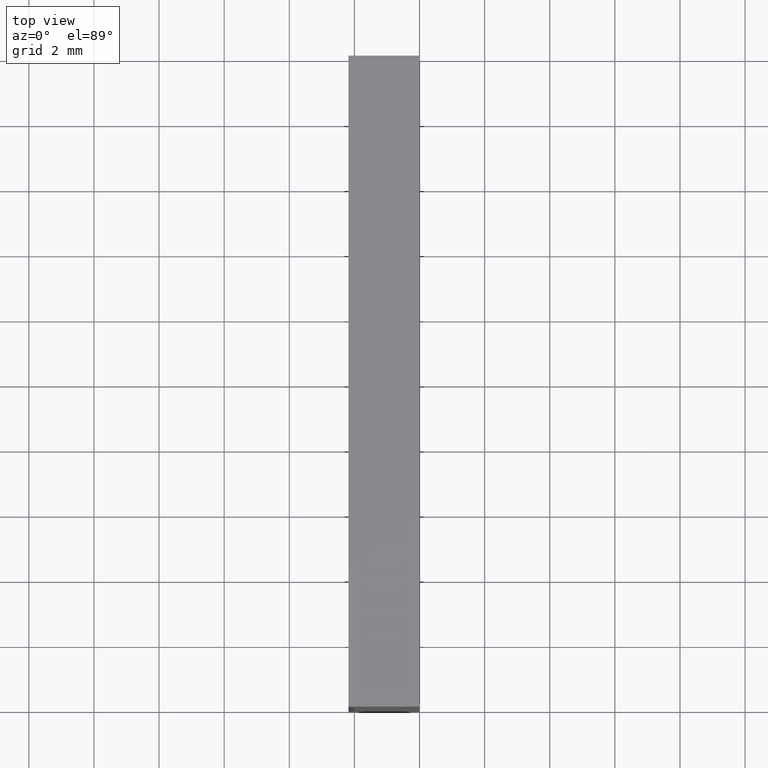
[diagram: clean part render]
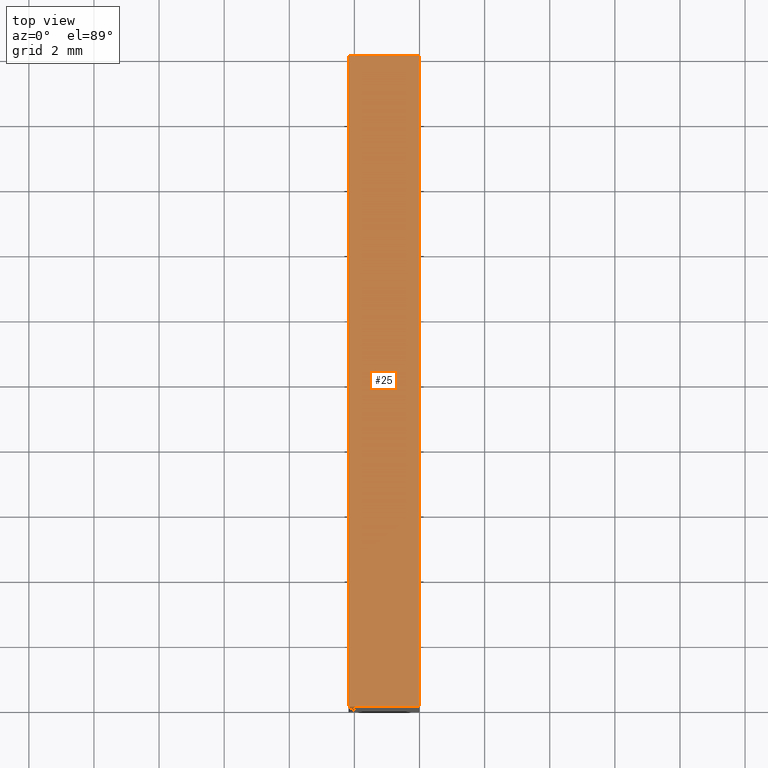
[diagram: same view with one face highlighted and labeled with its STEP entity id]
A machine part, top view. The second image highlights one B-rep face of the part: STEP entity #25.
In plain terms, the highlighted planar face has unit normal (0, 0, -1).
Its self-contained STEP definition (entity closure, byte-faithful):
#20 = EDGE_CURVE ( 'NONE', #123, #36, #28, .T. ) ;
#23 = CARTESIAN_POINT ( 'NONE',  ( 6.123233995736766300E-016, 20.00000000000000000, 10.00000000000000000 ) ) ;
#25 = ADVANCED_FACE ( 'NONE', ( #37 ), #51, .F. ) ;
#28 = LINE ( 'NONE', #180, #151 ) ;
#36 = VERTEX_POINT ( 'NONE', #195 ) ;
#37 = FACE_OUTER_BOUND ( 'NONE', #53, .T. ) ;
#38 = CARTESIAN_POINT ( 'NONE',  ( 6.123233995736766300E-016, 0.0000000000000000000, 10.00000000000000000 ) ) ;
#39 = VECTOR ( 'NONE', #171, 1000.000000000000000 ) ;
#42 = CARTESIAN_POINT ( 'NONE',  ( -2.181979620400120300, 20.00000000000000000, 10.00000000000000000 ) ) ;
#51 = PLANE ( 'NONE',  #85 ) ;
#53 = EDGE_LOOP ( 'NONE', ( #109, #183, #201, #94 ) ) ;
#55 = LINE ( 'NONE', #115, #189 ) ;
#59 = VECTOR ( 'NONE', #188, 1000.000000000000000 ) ;
#69 = VERTEX_POINT ( 'NONE', #168 ) ;
#85 = AXIS2_PLACEMENT_3D ( 'NONE', #23, #179, #105 ) ;
#88 = EDGE_CURVE ( 'NONE', #110, #123, #55, .T. ) ;
#94 = ORIENTED_EDGE ( 'NONE', *, *, #169, .T. ) ;
#103 = DIRECTION ( 'NONE',  ( 1.000000000000000000, -0.0000000000000000000, -0.0000000000000000000 ) ) ;
#105 = DIRECTION ( 'NONE',  ( -1.000000000000000000, 0.0000000000000000000, -0.0000000000000000000 ) ) ;
#109 = ORIENTED_EDGE ( 'NONE', *, *, #131, .T. ) ;
#110 = VERTEX_POINT ( 'NONE', #42 ) ;
#115 = CARTESIAN_POINT ( 'NONE',  ( 6.123233995736766300E-016, 20.00000000000000000, 10.00000000000000000 ) ) ;
#123 = VERTEX_POINT ( 'NONE', #186 ) ;
#125 = LINE ( 'NONE', #139, #39 ) ;
#131 = EDGE_CURVE ( 'NONE', #69, #36, #192, .T. ) ;
#139 = CARTESIAN_POINT ( 'NONE',  ( -2.181979620400120300, 20.00000000000000000, 10.00000000000000000 ) ) ;
#147 = DIRECTION ( 'NONE',  ( -0.0000000000000000000, -1.000000000000000000, -0.0000000000000000000 ) ) ;
#151 = VECTOR ( 'NONE', #147, 1000.000000000000000 ) ;
#168 = CARTESIAN_POINT ( 'NONE',  ( -2.181979620400120300, 0.0000000000000000000, 10.00000000000000000 ) ) ;
#169 = EDGE_CURVE ( 'NONE', #110, #69, #125, .T. ) ;
#171 = DIRECTION ( 'NONE',  ( -0.0000000000000000000, -1.000000000000000000, -0.0000000000000000000 ) ) ;
#179 = DIRECTION ( 'NONE',  ( 0.0000000000000000000, 0.0000000000000000000, -1.000000000000000000 ) ) ;
#180 = CARTESIAN_POINT ( 'NONE',  ( 6.123233995736766300E-016, 20.00000000000000000, 10.00000000000000000 ) ) ;
#183 = ORIENTED_EDGE ( 'NONE', *, *, #20, .F. ) ;
#186 = CARTESIAN_POINT ( 'NONE',  ( 6.123233995736766300E-016, 20.00000000000000000, 10.00000000000000000 ) ) ;
#188 = DIRECTION ( 'NONE',  ( 1.000000000000000000, -0.0000000000000000000, -0.0000000000000000000 ) ) ;
#189 = VECTOR ( 'NONE', #103, 1000.000000000000000 ) ;
#192 = LINE ( 'NONE', #38, #59 ) ;
#195 = CARTESIAN_POINT ( 'NONE',  ( 6.123233995736766300E-016, 0.0000000000000000000, 10.00000000000000000 ) ) ;
#201 = ORIENTED_EDGE ( 'NONE', *, *, #88, .F. ) ;